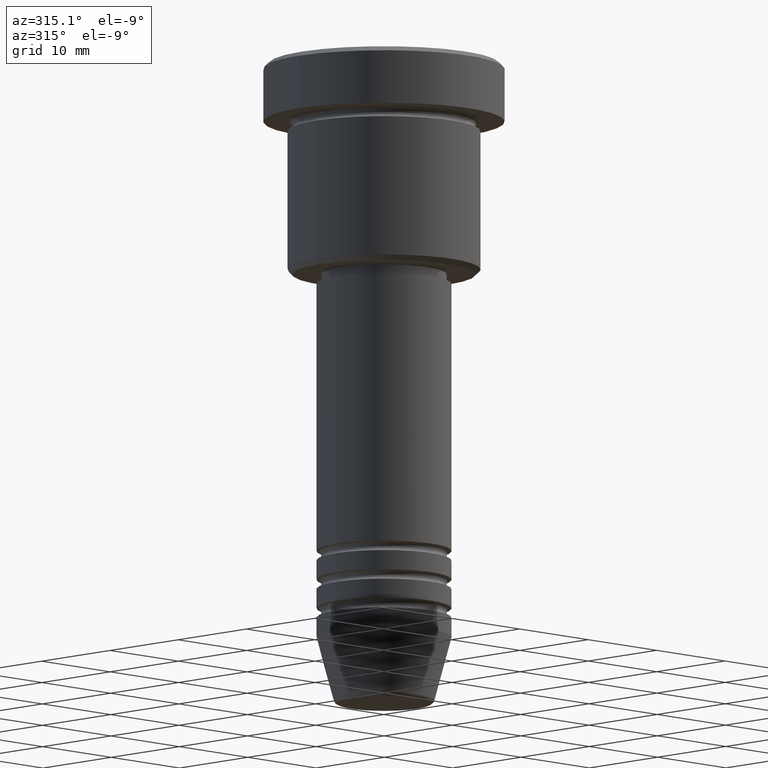
[diagram: clean part render]
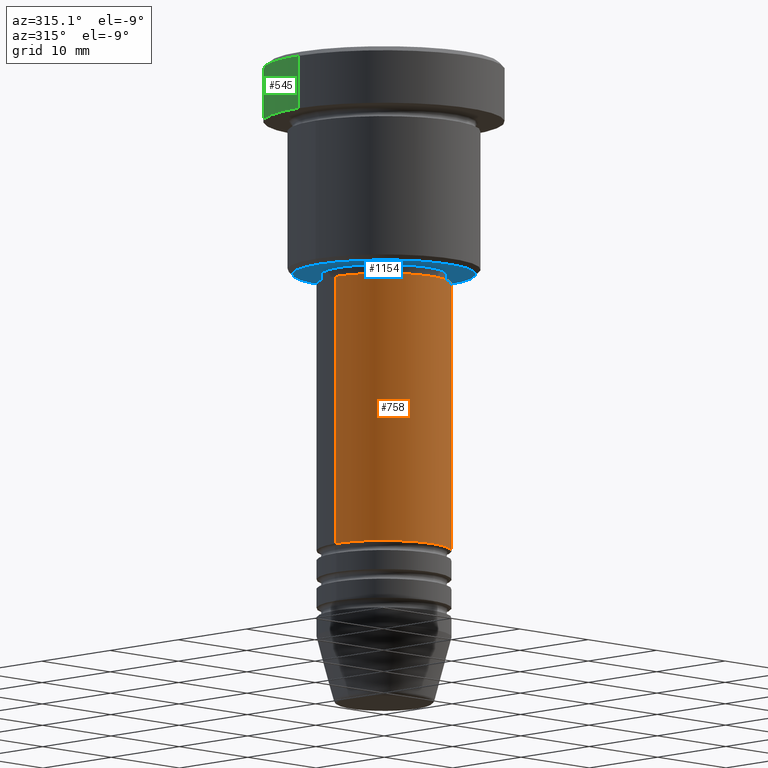
[diagram: same view with three faces highlighted in distinct colors, each labeled with its STEP entity id]
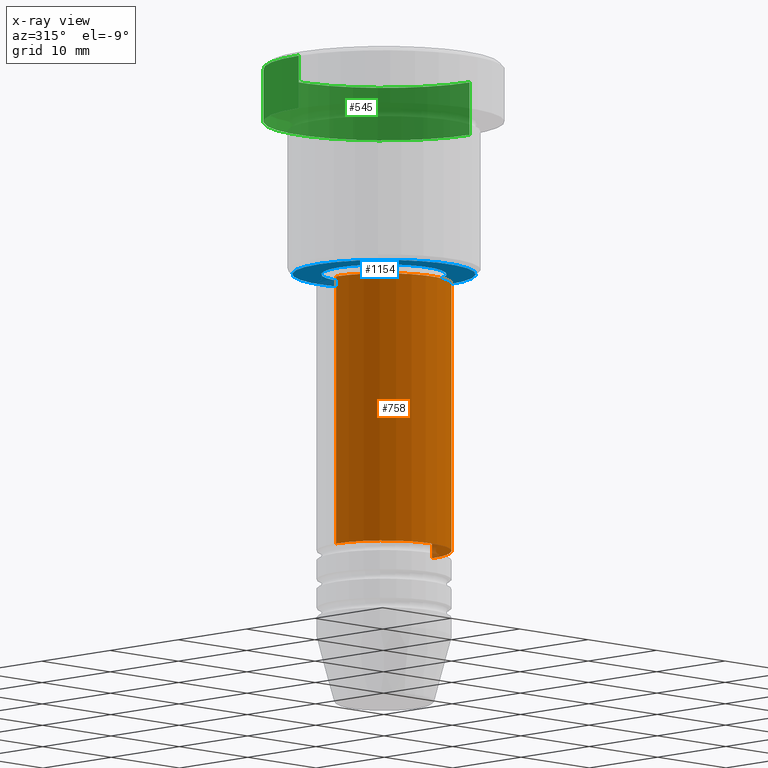
[diagram: x-ray of the same camera — body ghosted, the three highlighted faces saturated]
A machine part, auxiliary view with three faces highlighted in distinct colors.
The next image is the same camera in x-ray (body ghosted, the three faces saturated) — at least one of them is partly hidden behind the body in this view.
Their STEP definitions:

[orange] entity #758 — the highlighted cylindrical surface (partial cylindrical patch) has radius 7 mm, axis along (-0, -0, 1).
#5 = EDGE_CURVE ( 'NONE', #846, #430, #41, .T. ) ;
#40 = CARTESIAN_POINT ( 'NONE',  ( -7.000000000000000000, 8.572527594031473190E-16, 0.000000000000000000 ) ) ;
#41 = LINE ( 'NONE', #396, #714 ) ;
#52 = AXIS2_PLACEMENT_3D ( 'NONE', #421, #612, #789 ) ;
#132 = ORIENTED_EDGE ( 'NONE', *, *, #268, .T. ) ;
#139 = VECTOR ( 'NONE', #1122, 1000.000000000000000 ) ;
#156 = ORIENTED_EDGE ( 'NONE', *, *, #506, .F. ) ;
#268 = EDGE_CURVE ( 'NONE', #659, #846, #348, .T. ) ;
#301 = EDGE_LOOP ( 'NONE', ( #156, #132, #994, #756 ) ) ;
#348 = CIRCLE ( 'NONE', #1044, 7.000000000000000000 ) ;
#396 = CARTESIAN_POINT ( 'NONE',  ( 7.000000000000000000, 0.000000000000000000, 0.000000000000000000 ) ) ;
#409 = DIRECTION ( 'NONE',  ( 1.000000000000000000, 0.000000000000000000, 0.000000000000000000 ) ) ;
#414 = DIRECTION ( 'NONE',  ( -0.000000000000000000, -0.000000000000000000, 1.000000000000000000 ) ) ;
#421 = CARTESIAN_POINT ( 'NONE',  ( 0.000000000000000000, 0.000000000000000000, -23.00000000000000000 ) ) ;
#430 = VERTEX_POINT ( 'NONE', #1088 ) ;
#506 = EDGE_CURVE ( 'NONE', #659, #611, #576, .T. ) ;
#530 = DIRECTION ( 'NONE',  ( 1.000000000000000000, 0.000000000000000000, 0.000000000000000000 ) ) ;
#576 = LINE ( 'NONE', #40, #139 ) ;
#611 = VERTEX_POINT ( 'NONE', #1147 ) ;
#612 = DIRECTION ( 'NONE',  ( -0.000000000000000000, -0.000000000000000000, 1.000000000000000000 ) ) ;
#615 = CIRCLE ( 'NONE', #52, 7.000000000000000000 ) ;
#659 = VERTEX_POINT ( 'NONE', #971 ) ;
#666 = EDGE_CURVE ( 'NONE', #611, #430, #615, .T. ) ;
#702 = FACE_OUTER_BOUND ( 'NONE', #301, .T. ) ;
#714 = VECTOR ( 'NONE', #968, 1000.000000000000000 ) ;
#756 = ORIENTED_EDGE ( 'NONE', *, *, #666, .F. ) ;
#758 = ADVANCED_FACE ( 'NONE', ( #702 ), #799, .T. ) ;
#789 = DIRECTION ( 'NONE',  ( 1.000000000000000000, 0.000000000000000000, 0.000000000000000000 ) ) ;
#799 = CYLINDRICAL_SURFACE ( 'NONE', #1081, 7.000000000000000000 ) ;
#803 = CARTESIAN_POINT ( 'NONE',  ( 7.000000000000000000, 0.000000000000000000, -50.99999999999997868 ) ) ;
#846 = VERTEX_POINT ( 'NONE', #803 ) ;
#968 = DIRECTION ( 'NONE',  ( -0.000000000000000000, -0.000000000000000000, 1.000000000000000000 ) ) ;
#971 = CARTESIAN_POINT ( 'NONE',  ( -7.000000000000000000, 8.572527594031473190E-16, -50.99999999999997868 ) ) ;
#993 = DIRECTION ( 'NONE',  ( -0.000000000000000000, -0.000000000000000000, 1.000000000000000000 ) ) ;
#994 = ORIENTED_EDGE ( 'NONE', *, *, #5, .T. ) ;
#1010 = CARTESIAN_POINT ( 'NONE',  ( 0.000000000000000000, 0.000000000000000000, -50.99999999999997868 ) ) ;
#1044 = AXIS2_PLACEMENT_3D ( 'NONE', #1010, #993, #530 ) ;
#1072 = CARTESIAN_POINT ( 'NONE',  ( 0.000000000000000000, 0.000000000000000000, 0.000000000000000000 ) ) ;
#1081 = AXIS2_PLACEMENT_3D ( 'NONE', #1072, #414, #409 ) ;
#1088 = CARTESIAN_POINT ( 'NONE',  ( 7.000000000000000000, 0.000000000000000000, -23.00000000000000000 ) ) ;
#1122 = DIRECTION ( 'NONE',  ( -0.000000000000000000, -0.000000000000000000, 1.000000000000000000 ) ) ;
#1147 = CARTESIAN_POINT ( 'NONE',  ( -7.000000000000000000, 8.572527594031473190E-16, -23.00000000000000000 ) ) ;

[blue] entity #1154 — the highlighted planar face has unit normal (0, 0, -1).
#11 = CARTESIAN_POINT ( 'NONE',  ( 0.000000000000000000, 0.000000000000000000, -21.99999999999999645 ) ) ;
#47 = CIRCLE ( 'NONE', #774, 9.499999999999994671 ) ;
#190 = VERTEX_POINT ( 'NONE', #824 ) ;
#198 = AXIS2_PLACEMENT_3D ( 'NONE', #1018, #661, #204 ) ;
#204 = DIRECTION ( 'NONE',  ( 1.000000000000000000, 0.000000000000000000, 0.000000000000000000 ) ) ;
#281 = CARTESIAN_POINT ( 'NONE',  ( 6.500000000000000000, 0.000000000000000000, -21.99999999999999645 ) ) ;
#311 = CARTESIAN_POINT ( 'NONE',  ( 0.000000000000000000, 10.00000000000000000, -21.99999999999999645 ) ) ;
#322 = DIRECTION ( 'NONE',  ( 0.000000000000000000, 0.000000000000000000, -1.000000000000000000 ) ) ;
#327 = AXIS2_PLACEMENT_3D ( 'NONE', #601, #860, #496 ) ;
#347 = AXIS2_PLACEMENT_3D ( 'NONE', #311, #322, #798 ) ;
#350 = CIRCLE ( 'NONE', #198, 6.500000000000000000 ) ;
#407 = CARTESIAN_POINT ( 'NONE',  ( -9.499999999999994671, 1.194030629168669075E-15, -21.99999999999999645 ) ) ;
#463 = CIRCLE ( 'NONE', #867, 6.500000000000000000 ) ;
#479 = DIRECTION ( 'NONE',  ( 0.000000000000000000, 0.000000000000000000, -1.000000000000000000 ) ) ;
#496 = DIRECTION ( 'NONE',  ( -1.000000000000000000, 0.000000000000000000, 0.000000000000000000 ) ) ;
#520 = EDGE_CURVE ( 'NONE', #937, #190, #350, .T. ) ;
#528 = EDGE_CURVE ( 'NONE', #563, #1133, #47, .T. ) ;
#563 = VERTEX_POINT ( 'NONE', #1108 ) ;
#601 = CARTESIAN_POINT ( 'NONE',  ( 0.000000000000000000, 0.000000000000000000, -21.99999999999999645 ) ) ;
#661 = DIRECTION ( 'NONE',  ( -0.000000000000000000, -0.000000000000000000, 1.000000000000000000 ) ) ;
#668 = ORIENTED_EDGE ( 'NONE', *, *, #520, .T. ) ;
#693 = CIRCLE ( 'NONE', #327, 9.499999999999994671 ) ;
#732 = ORIENTED_EDGE ( 'NONE', *, *, #1075, .T. ) ;
#734 = DIRECTION ( 'NONE',  ( 1.000000000000000000, 0.000000000000000000, 0.000000000000000000 ) ) ;
#765 = CARTESIAN_POINT ( 'NONE',  ( 0.000000000000000000, 0.000000000000000000, -21.99999999999999645 ) ) ;
#768 = FACE_BOUND ( 'NONE', #1045, .T. ) ;
#774 = AXIS2_PLACEMENT_3D ( 'NONE', #765, #479, #1031 ) ;
#798 = DIRECTION ( 'NONE',  ( -1.000000000000000000, 0.000000000000000000, -0.000000000000000000 ) ) ;
#813 = EDGE_CURVE ( 'NONE', #190, #937, #463, .T. ) ;
#824 = CARTESIAN_POINT ( 'NONE',  ( -6.500000000000000000, 7.960204194457795477E-16, -21.99999999999999645 ) ) ;
#860 = DIRECTION ( 'NONE',  ( 0.000000000000000000, 0.000000000000000000, -1.000000000000000000 ) ) ;
#867 = AXIS2_PLACEMENT_3D ( 'NONE', #11, #1095, #734 ) ;
#899 = ORIENTED_EDGE ( 'NONE', *, *, #813, .T. ) ;
#937 = VERTEX_POINT ( 'NONE', #281 ) ;
#977 = FACE_OUTER_BOUND ( 'NONE', #1135, .T. ) ;
#1018 = CARTESIAN_POINT ( 'NONE',  ( 0.000000000000000000, 0.000000000000000000, -21.99999999999999645 ) ) ;
#1031 = DIRECTION ( 'NONE',  ( -1.000000000000000000, 0.000000000000000000, 0.000000000000000000 ) ) ;
#1032 = ORIENTED_EDGE ( 'NONE', *, *, #528, .T. ) ;
#1045 = EDGE_LOOP ( 'NONE', ( #668, #899 ) ) ;
#1075 = EDGE_CURVE ( 'NONE', #1133, #563, #693, .T. ) ;
#1095 = DIRECTION ( 'NONE',  ( -0.000000000000000000, -0.000000000000000000, 1.000000000000000000 ) ) ;
#1108 = CARTESIAN_POINT ( 'NONE',  ( 9.499999999999994671, 0.000000000000000000, -21.99999999999999645 ) ) ;
#1133 = VERTEX_POINT ( 'NONE', #407 ) ;
#1135 = EDGE_LOOP ( 'NONE', ( #1032, #732 ) ) ;
#1146 = PLANE ( 'NONE',  #347 ) ;
#1154 = ADVANCED_FACE ( 'NONE', ( #977, #768 ), #1146, .T. ) ;

[green] entity #545 — the highlighted cylindrical surface (partial cylindrical patch) has radius 12.5 mm, axis along (-0, -0, 1).
#4 = ORIENTED_EDGE ( 'NONE', *, *, #256, .T. ) ;
#21 = EDGE_CURVE ( 'NONE', #795, #273, #959, .T. ) ;
#72 = CARTESIAN_POINT ( 'NONE',  ( -12.50000000000000000, 1.530808498934191521E-15, 0.000000000000000000 ) ) ;
#118 = CARTESIAN_POINT ( 'NONE',  ( 0.000000000000000000, 0.000000000000000000, 0.000000000000000000 ) ) ;
#158 = AXIS2_PLACEMENT_3D ( 'NONE', #118, #1042, #583 ) ;
#162 = CIRCLE ( 'NONE', #755, 12.50000000000000000 ) ;
#186 = EDGE_LOOP ( 'NONE', ( #4, #391, #936, #572 ) ) ;
#256 = EDGE_CURVE ( 'NONE', #841, #795, #162, .T. ) ;
#273 = VERTEX_POINT ( 'NONE', #898 ) ;
#307 = CARTESIAN_POINT ( 'NONE',  ( 12.50000000000000000, 0.000000000000000000, -0.5000000000000056621 ) ) ;
#324 = EDGE_CURVE ( 'NONE', #273, #728, #907, .T. ) ;
#391 = ORIENTED_EDGE ( 'NONE', *, *, #21, .T. ) ;
#431 = CARTESIAN_POINT ( 'NONE',  ( -12.50000000000000000, 1.530808498934191521E-15, -5.999999999999996447 ) ) ;
#450 = DIRECTION ( 'NONE',  ( 0.000000000000000000, 0.000000000000000000, -1.000000000000000000 ) ) ;
#493 = CYLINDRICAL_SURFACE ( 'NONE', #158, 12.50000000000000000 ) ;
#545 = ADVANCED_FACE ( 'NONE', ( #565 ), #493, .T. ) ;
#559 = VECTOR ( 'NONE', #779, 1000.000000000000000 ) ;
#565 = FACE_OUTER_BOUND ( 'NONE', #186, .T. ) ;
#572 = ORIENTED_EDGE ( 'NONE', *, *, #957, .F. ) ;
#583 = DIRECTION ( 'NONE',  ( 1.000000000000000000, 0.000000000000000000, 0.000000000000000000 ) ) ;
#641 = DIRECTION ( 'NONE',  ( 1.000000000000000000, 0.000000000000000000, 0.000000000000000000 ) ) ;
#655 = VECTOR ( 'NONE', #1130, 1000.000000000000000 ) ;
#707 = CARTESIAN_POINT ( 'NONE',  ( 12.50000000000000000, 0.000000000000000000, -5.999999999999996447 ) ) ;
#728 = VERTEX_POINT ( 'NONE', #307 ) ;
#755 = AXIS2_PLACEMENT_3D ( 'NONE', #809, #1175, #641 ) ;
#779 = DIRECTION ( 'NONE',  ( -0.000000000000000000, -0.000000000000000000, 1.000000000000000000 ) ) ;
#795 = VERTEX_POINT ( 'NONE', #431 ) ;
#809 = CARTESIAN_POINT ( 'NONE',  ( 0.000000000000000000, 0.000000000000000000, -5.999999999999996447 ) ) ;
#818 = CARTESIAN_POINT ( 'NONE',  ( 0.000000000000000000, 0.000000000000000000, -0.5000000000000056621 ) ) ;
#834 = AXIS2_PLACEMENT_3D ( 'NONE', #818, #450, #835 ) ;
#835 = DIRECTION ( 'NONE',  ( 1.000000000000000000, 0.000000000000000000, 0.000000000000000000 ) ) ;
#839 = LINE ( 'NONE', #1107, #655 ) ;
#841 = VERTEX_POINT ( 'NONE', #707 ) ;
#898 = CARTESIAN_POINT ( 'NONE',  ( -12.50000000000000000, 1.530808498934191521E-15, -0.5000000000000056621 ) ) ;
#907 = CIRCLE ( 'NONE', #834, 12.50000000000000000 ) ;
#936 = ORIENTED_EDGE ( 'NONE', *, *, #324, .T. ) ;
#957 = EDGE_CURVE ( 'NONE', #841, #728, #839, .T. ) ;
#959 = LINE ( 'NONE', #72, #559 ) ;
#1042 = DIRECTION ( 'NONE',  ( -0.000000000000000000, -0.000000000000000000, 1.000000000000000000 ) ) ;
#1107 = CARTESIAN_POINT ( 'NONE',  ( 12.50000000000000000, 0.000000000000000000, 0.000000000000000000 ) ) ;
#1130 = DIRECTION ( 'NONE',  ( -0.000000000000000000, -0.000000000000000000, 1.000000000000000000 ) ) ;
#1175 = DIRECTION ( 'NONE',  ( -0.000000000000000000, -0.000000000000000000, 1.000000000000000000 ) ) ;